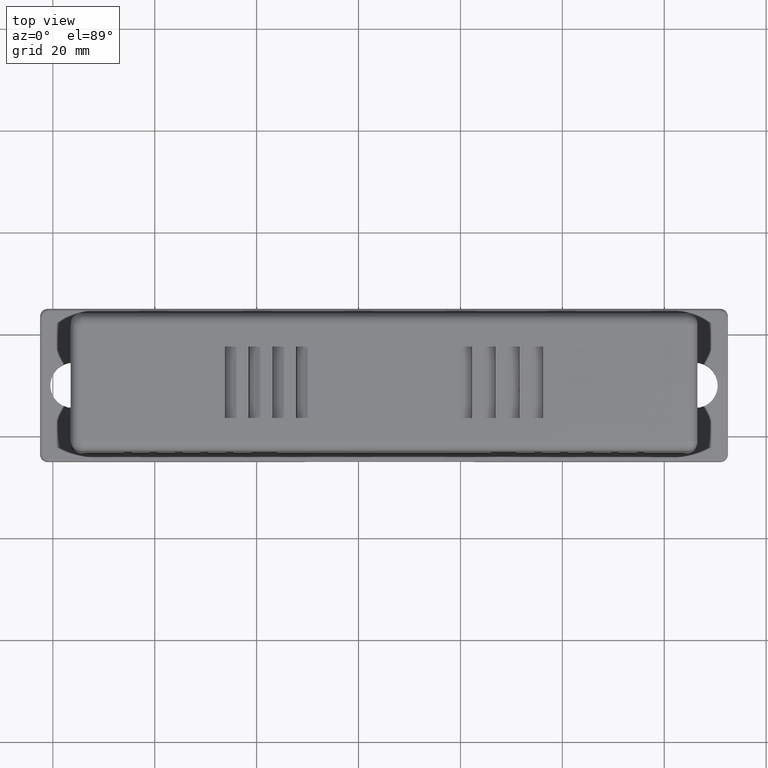
[diagram: clean part render]
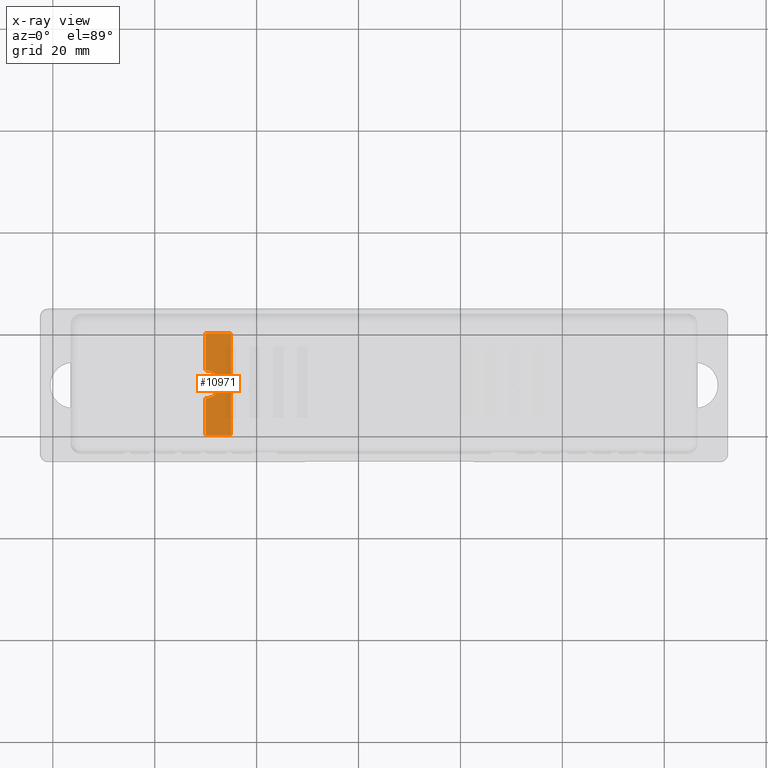
[diagram: x-ray — body ghosted, one internal face saturated and labeled with its STEP entity id]
A machine part, top view, then the same camera in x-ray: the body is ghosted and one INTERNAL B-rep face — a face not visible from any outside direction — is saturated and labeled: STEP entity #10971.
In plain terms, the highlighted planar face has unit normal (0, 0, -1).
Its self-contained STEP definition (entity closure, byte-faithful):
#138 = EDGE_CURVE ( 'NONE', #3827, #12834, #4830, .T. ) ;
#541 = DIRECTION ( 'NONE',  ( -0.000000000000000000, -1.000000000000000000, -0.000000000000000000 ) ) ;
#1329 = DIRECTION ( 'NONE',  ( -1.000000000000000000, 0.000000000000000000, -0.000000000000000000 ) ) ;
#1383 = AXIS2_PLACEMENT_3D ( 'NONE', #5273, #10391, #12575 ) ;
#1493 = EDGE_CURVE ( 'NONE', #1498, #3827, #9297, .T. ) ;
#1498 = VERTEX_POINT ( 'NONE', #7873 ) ;
#1901 = EDGE_CURVE ( 'NONE', #8482, #13750, #3377, .T. ) ;
#2303 = CARTESIAN_POINT ( 'NONE',  ( 0.3937007874015748254, 0.000000000000000000, 0.000000000000000000 ) ) ;
#2422 = CARTESIAN_POINT ( 'NONE',  ( 0.3937007874015748254, 0.5019685039370078705, 0.000000000000000000 ) ) ;
#3377 = LINE ( 'NONE', #8340, #3403 ) ;
#3403 = VECTOR ( 'NONE', #13461, 39.37007874015748143 ) ;
#3621 = ORIENTED_EDGE ( 'NONE', *, *, #138, .F. ) ;
#3688 = VERTEX_POINT ( 'NONE', #10808 ) ;
#3729 = CARTESIAN_POINT ( 'NONE',  ( 0.5511811023622047445, 0.7874015748031496509, 0.000000000000000000 ) ) ;
#3795 = VECTOR ( 'NONE', #11215, 39.37007874015748143 ) ;
#3801 = VECTOR ( 'NONE', #5070, 39.37007874015748143 ) ;
#3827 = VERTEX_POINT ( 'NONE', #2303 ) ;
#3829 = EDGE_CURVE ( 'NONE', #5973, #8482, #8867, .T. ) ;
#4203 = VECTOR ( 'NONE', #541, 39.37007874015748143 ) ;
#4319 = CARTESIAN_POINT ( 'NONE',  ( 0.3937007874015748254, 0.3937007874015748254, 0.000000000000000000 ) ) ;
#4830 = LINE ( 'NONE', #10203, #13437 ) ;
#5070 = DIRECTION ( 'NONE',  ( 0.000000000000000000, 1.000000000000000000, -0.000000000000000000 ) ) ;
#5273 = CARTESIAN_POINT ( 'NONE',  ( 0.3937007874015748254, 0.3937007874015748254, 0.000000000000000000 ) ) ;
#5468 = ORIENTED_EDGE ( 'NONE', *, *, #1901, .F. ) ;
#5973 = VERTEX_POINT ( 'NONE', #7826 ) ;
#6374 = PLANE ( 'NONE',  #13481 ) ;
#6676 = DIRECTION ( 'NONE',  ( -0.000000000000000000, -0.000000000000000000, 1.000000000000000000 ) ) ;
#7473 = CIRCLE ( 'NONE', #8283, 0.1082677165354330728 ) ;
#7826 = CARTESIAN_POINT ( 'NONE',  ( 0.5905511811023621549, 0.7874015748031496509, 0.000000000000000000 ) ) ;
#7873 = CARTESIAN_POINT ( 'NONE',  ( 0.3937007874015748254, 0.2854330708661417804, 0.000000000000000000 ) ) ;
#8283 = AXIS2_PLACEMENT_3D ( 'NONE', #4319, #6676, #14233 ) ;
#8303 = ORIENTED_EDGE ( 'NONE', *, *, #11936, .F. ) ;
#8340 = CARTESIAN_POINT ( 'NONE',  ( 0.3937007874015748254, 0.5019685039370078705, 0.000000000000000000 ) ) ;
#8482 = VERTEX_POINT ( 'NONE', #9248 ) ;
#8833 = ORIENTED_EDGE ( 'NONE', *, *, #1493, .F. ) ;
#8867 = LINE ( 'NONE', #3729, #3795 ) ;
#9161 = CIRCLE ( 'NONE', #1383, 0.1082677165354330728 ) ;
#9248 = CARTESIAN_POINT ( 'NONE',  ( 0.3937007874015748254, 0.7874015748031496509, 0.000000000000000000 ) ) ;
#9288 = EDGE_CURVE ( 'NONE', #1498, #3688, #7473, .T. ) ;
#9297 = LINE ( 'NONE', #12052, #4203 ) ;
#9993 = EDGE_CURVE ( 'NONE', #3688, #13750, #9161, .T. ) ;
#10203 = CARTESIAN_POINT ( 'NONE',  ( 0.5511811023622047445, 0.000000000000000000, 0.000000000000000000 ) ) ;
#10294 = DIRECTION ( 'NONE',  ( 1.000000000000000000, 0.000000000000000000, 0.000000000000000000 ) ) ;
#10391 = DIRECTION ( 'NONE',  ( -0.000000000000000000, -0.000000000000000000, 1.000000000000000000 ) ) ;
#10808 = CARTESIAN_POINT ( 'NONE',  ( 0.5019685039370078705, 0.3937007874015748254, 0.000000000000000000 ) ) ;
#10955 = ORIENTED_EDGE ( 'NONE', *, *, #9993, .T. ) ;
#10971 = ADVANCED_FACE ( 'NONE', ( #16536 ), #6374, .T. ) ;
#11215 = DIRECTION ( 'NONE',  ( -1.000000000000000000, -0.000000000000000000, 0.000000000000000000 ) ) ;
#11494 = DIRECTION ( 'NONE',  ( 0.000000000000000000, 0.000000000000000000, -1.000000000000000000 ) ) ;
#11837 = CARTESIAN_POINT ( 'NONE',  ( 0.5905511811023621549, 0.000000000000000000, 0.000000000000000000 ) ) ;
#11917 = ORIENTED_EDGE ( 'NONE', *, *, #3829, .F. ) ;
#11936 = EDGE_CURVE ( 'NONE', #12834, #5973, #15414, .T. ) ;
#12052 = CARTESIAN_POINT ( 'NONE',  ( 0.3937007874015748254, 0.2854330708661417804, 0.000000000000000000 ) ) ;
#12575 = DIRECTION ( 'NONE',  ( -1.000000000000000000, 0.000000000000000000, 0.000000000000000000 ) ) ;
#12834 = VERTEX_POINT ( 'NONE', #11837 ) ;
#13437 = VECTOR ( 'NONE', #10294, 39.37007874015748143 ) ;
#13461 = DIRECTION ( 'NONE',  ( -0.000000000000000000, -1.000000000000000000, -0.000000000000000000 ) ) ;
#13481 = AXIS2_PLACEMENT_3D ( 'NONE', #16453, #11494, #1329 ) ;
#13750 = VERTEX_POINT ( 'NONE', #2422 ) ;
#14233 = DIRECTION ( 'NONE',  ( -1.000000000000000000, 0.000000000000000000, 0.000000000000000000 ) ) ;
#14759 = ORIENTED_EDGE ( 'NONE', *, *, #9288, .T. ) ;
#15105 = EDGE_LOOP ( 'NONE', ( #11917, #8303, #3621, #8833, #14759, #10955, #5468 ) ) ;
#15414 = LINE ( 'NONE', #16578, #3801 ) ;
#16453 = CARTESIAN_POINT ( 'NONE',  ( 0.5511811023622047445, 0.3937007874015748254, 0.000000000000000000 ) ) ;
#16536 = FACE_OUTER_BOUND ( 'NONE', #15105, .T. ) ;
#16578 = CARTESIAN_POINT ( 'NONE',  ( 0.5905511811023621549, -0.01181102362204708781, 0.000000000000000000 ) ) ;